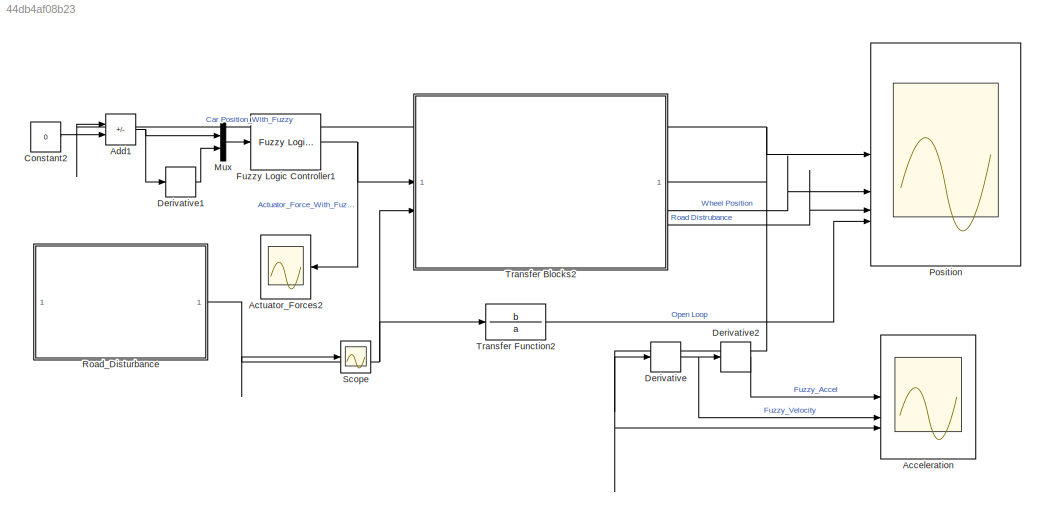
MODEL slx_44db4af08b23
KIND model
CONFIG AbsTol = auto
CONFIG EnableMultiTasking = off
CONFIG FixedStep = auto
CONFIG MaxStep = 1e-3
CONFIG MinStep = auto
CONFIG RelTol = 1e-3
CONFIG SampleTimeConstraint = Unconstrained
CONFIG SolverName = VariableStepAuto
CONFIG StartTime = 0.0
CONFIG StopTime = 10
BLOCK [Scope] Acceleration
  Floating = off
  NumInputPorts = 3
  ScopeSpecificationString = Simulink.scopes.TimeScopeBlockCfg('CurrentConfiguration', extmgr.ConfigurationSet(extmgr.Configuration('Core','General UI',true),extmgr.Configuration('Core','Source UI',true),extmgr.Configuration('Sources','WiredSimulink',true,'DataLoggingVariableName','ScopeData1'),extmgr.Configuration('Visuals','Time Domain',true,'SerializedDisplays',{struct('MinYLimReal','-111729.00564','MaxYLimReal','994265.93...<+1735ch>
BLOCK [Scope] Actuator_Forces2
  Floating = off
  NameLocation = top
  NumInputPorts = 1
  ScopeSpecificationString = Simulink.scopes.TimeScopeBlockCfg('CurrentConfiguration', extmgr.ConfigurationSet(extmgr.Configuration('Core','General UI',true),extmgr.Configuration('Core','Source UI',true),extmgr.Configuration('Sources','WiredSimulink',true,'DataLoggingVariableName','ScopeData1'),extmgr.Configuration('Visuals','Time Domain',true,'SerializedDisplays',{struct('MinYLimReal','-2270.53394','MaxYLimReal','735.02853',...<+1497ch>
BLOCK [Sum] Add1
  IconShape = rectangular
  Inputs = -+
BLOCK [Constant] Constant2
  Value = 0
BLOCK [Derivative] Derivative
BLOCK [Derivative] Derivative1
BLOCK [Derivative] Derivative2
BLOCK [Reference] Fuzzy Logic Controller1  REF=fuzblock/Fuzzy Logic   (lib defined in mdl_858b3b3e7478)
Controller
  SourceBlock = fuzblock/Fuzzy Logic \nController
  SourceType = Fuzzy Inference System
BLOCK [Mux] Mux
  DisplayOption = bar
  Inputs = 2
BLOCK [Scope] Position
  Floating = off
  NumInputPorts = 4
  ScopeSpecificationString = Simulink.scopes.TimeScopeBlockCfg('CurrentConfiguration', extmgr.ConfigurationSet(extmgr.Configuration('Core','General UI',true),extmgr.Configuration('Core','Source UI',true),extmgr.Configuration('Sources','WiredSimulink',true,'DataLoggingVariableName','ScopeData2'),extmgr.Configuration('Visuals','Time Domain',true,'SerializedDisplays',{struct('MinYLimReal','-0.09339','MaxYLimReal','0.17281','YLab...<+2014ch>
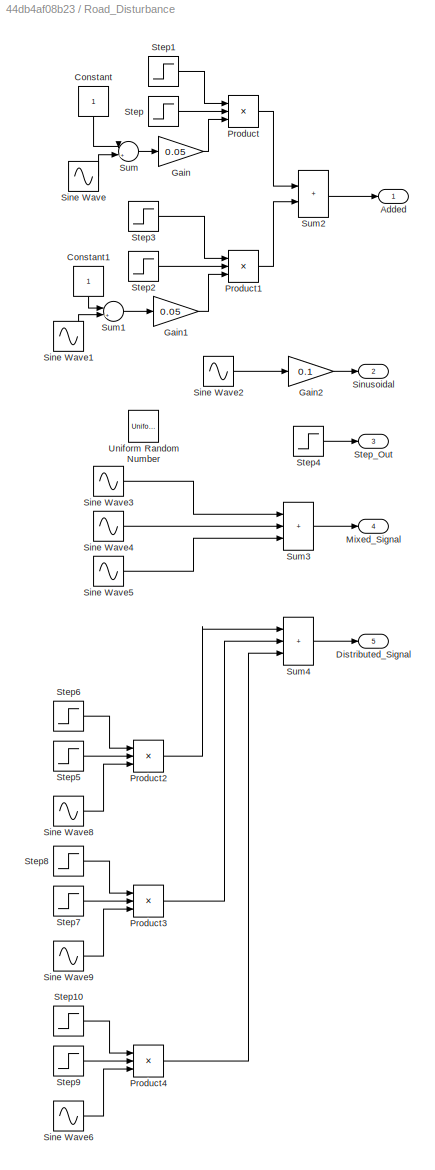
BLOCK [SubSystem] Road_Disturbance
BLOCK [Outport] Road_Disturbance/Added
BLOCK [Constant] Road_Disturbance/Constant
  NameLocation = left
BLOCK [Constant] Road_Disturbance/Constant1
  NameLocation = left
BLOCK [Outport] Road_Disturbance/Distributed_Signal
  Port = 5
BLOCK [Gain] Road_Disturbance/Gain
  Gain = 0.05
BLOCK [Gain] Road_Disturbance/Gain1
  Gain = 0.05
BLOCK [Gain] Road_Disturbance/Gain2
  Gain = 0.1
BLOCK [Outport] Road_Disturbance/Mixed_Signal
  Port = 4
BLOCK [Product] Road_Disturbance/Product
  Inputs = 3
BLOCK [Product] Road_Disturbance/Product1
  Inputs = 3
BLOCK [Product] Road_Disturbance/Product2
  Inputs = 3
BLOCK [Product] Road_Disturbance/Product3
  Inputs = 3
BLOCK [Product] Road_Disturbance/Product4
  Inputs = 3
BLOCK [Sin] Road_Disturbance/Sine Wave
  Frequency = 2*pi
  Phase = pi*3/2
  SampleTime = 0
BLOCK [Sin] Road_Disturbance/Sine Wave1
  Frequency = 2*pi
  Phase = pi*3/2
  SampleTime = 0
BLOCK [Sin] Road_Disturbance/Sine Wave2
  Frequency = 2*pi
  Phase = pi
  SampleTime = 0
BLOCK [Sin] Road_Disturbance/Sine Wave3
  Amplitude = 0.01
  Frequency = 15*pi
  SampleTime = 0
BLOCK [Sin] Road_Disturbance/Sine Wave4
  Amplitude = 0.02
  Frequency = 10*pi
  Phase = pi/2
  SampleTime = 0
BLOCK [Sin] Road_Disturbance/Sine Wave5
  Amplitude = 0.03
  Frequency = pi
  SampleTime = 0
BLOCK [Sin] Road_Disturbance/Sine Wave6
  Amplitude = 0.08
  Frequency = pi
  Phase = pi*3/2
  SampleTime = 0
BLOCK [Sin] Road_Disturbance/Sine Wave8
  Amplitude = 0.1
  Frequency = pi
  Phase = pi*3/2
  SampleTime = 0
BLOCK [Sin] Road_Disturbance/Sine Wave9
  Amplitude = 0.05
  Frequency = pi
  Phase = pi*3/2
  SampleTime = 0
BLOCK [Outport] Road_Disturbance/Sinusoidal
  Port = 2
BLOCK [Step] Road_Disturbance/Step
  After = 0
  Before = 1
  SampleTime = 0
  Time = 1.5
BLOCK [Step] Road_Disturbance/Step1
  SampleTime = 0
  Time = 0.5
BLOCK [Step] Road_Disturbance/Step10
  SampleTime = 0
  Time = 8.5
BLOCK [Step] Road_Disturbance/Step2
  After = 0
  Before = 1
  SampleTime = 0
  Time = 3.5
BLOCK [Step] Road_Disturbance/Step3
  SampleTime = 0
  Time = 2.5
BLOCK [Step] Road_Disturbance/Step4
  After = 0.015
  SampleTime = 0
  Time = 2
BLOCK [Step] Road_Disturbance/Step5
  After = 0
  Before = 1
  SampleTime = 0
  Time = 1.5
BLOCK [Step] Road_Disturbance/Step6
  SampleTime = 0
  Time = 0.5
BLOCK [Step] Road_Disturbance/Step7
  After = 0
  Before = 1
  SampleTime = 0
  Time = 5.5
BLOCK [Step] Road_Disturbance/Step8
  SampleTime = 0
  Time = 4.5
BLOCK [Step] Road_Disturbance/Step9
  After = 0
  Before = 1
  SampleTime = 0
  Time = 9.5
BLOCK [Outport] Road_Disturbance/Step_Out
  Port = 3
BLOCK [Sum] Road_Disturbance/Sum
  Inputs = |+-
BLOCK [Sum] Road_Disturbance/Sum1
  Inputs = |+-
BLOCK [Sum] Road_Disturbance/Sum2
  IconShape = rectangular
BLOCK [Sum] Road_Disturbance/Sum3
  IconShape = rectangular
  Inputs = +++
BLOCK [Sum] Road_Disturbance/Sum4
  IconShape = rectangular
  Inputs = +++
BLOCK [UniformRandomNumber] Road_Disturbance/Uniform Random Number
  Maximum = 0.05
  Minimum = -0.05
  SampleTime = 0.1
BLOCK [Scope] Scope
  Floating = off
  NumInputPorts = 1
  ScopeSpecificationString = Simulink.scopes.TimeScopeBlockCfg('CurrentConfiguration', extmgr.ConfigurationSet(extmgr.Configuration('Core','General UI',true),extmgr.Configuration('Core','Source UI',true),extmgr.Configuration('Sources','WiredSimulink',true,'DataLoggingVariableName','ScopeData1'),extmgr.Configuration('Visuals','Time Domain',true,'SerializedDisplays',{struct('MinYLimReal','-0.0125','MaxYLimReal','0.1125','YLabel...<+1423ch>
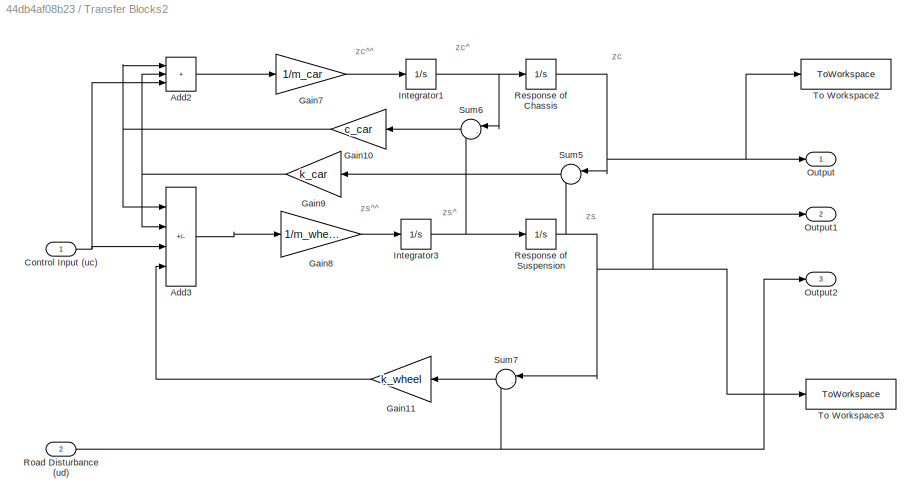
BLOCK [SubSystem] Transfer Blocks2
BLOCK [Sum] Transfer Blocks2/Add2
  IconShape = rectangular
  Inputs = +++
BLOCK [Sum] Transfer Blocks2/Add3
  IconShape = rectangular
  Inputs = ---+
BLOCK [Inport] Transfer Blocks2/Control Input (uc)
BLOCK [Gain] Transfer Blocks2/Gain10
  Gain = c_car
  NameLocation = top
BLOCK [Gain] Transfer Blocks2/Gain11
  Gain = k_wheel
  NameLocation = top
BLOCK [Gain] Transfer Blocks2/Gain7
  Gain = 1/m_car
BLOCK [Gain] Transfer Blocks2/Gain8
  Gain = 1/m_wheel
BLOCK [Gain] Transfer Blocks2/Gain9
  Gain = k_car
  NameLocation = top
BLOCK [Integrator] Transfer Blocks2/Integrator1
BLOCK [Integrator] Transfer Blocks2/Integrator3
BLOCK [Outport] Transfer Blocks2/Output
BLOCK [Outport] Transfer Blocks2/Output1
  Port = 2
BLOCK [Outport] Transfer Blocks2/Output2
  Port = 3
BLOCK [Integrator] Transfer Blocks2/Response of Chassis
BLOCK [Integrator] Transfer Blocks2/Response of Suspension
BLOCK [Inport] Transfer Blocks2/Road Disturbance (ud)
  Port = 2
BLOCK [Sum] Transfer Blocks2/Sum5
  Inputs = |-+
  NameLocation = top
BLOCK [Sum] Transfer Blocks2/Sum6
  Inputs = |-+
  NameLocation = top
BLOCK [Sum] Transfer Blocks2/Sum7
  Inputs = |-+
  NameLocation = top
BLOCK [ToWorkspace] Transfer Blocks2/To Workspace2
  FixptAsFi = on
  MaxDataPoints = inf
  SampleTime = -1
  SaveFormat = Timeseries
  VariableName = Z_Car4
BLOCK [ToWorkspace] Transfer Blocks2/To Workspace3
  FixptAsFi = on
  MaxDataPoints = inf
  SampleTime = -1
  SaveFormat = Timeseries
  VariableName = Z_Wheel4
BLOCK [TransferFcn] Transfer Function2
  Denominator = a
  Numerator = b
ANNOTATION Transfer Blocks2: zc
ANNOTATION Transfer Blocks2: zc^
ANNOTATION Transfer Blocks2: zc^^
ANNOTATION Transfer Blocks2: zs
ANNOTATION Transfer Blocks2: zs^
ANNOTATION Transfer Blocks2: zs^^
NET Add1:1 -> Derivative1:1, Mux:1
LINE Constant2:1 -> Add1:2
LINE Derivative1:1 -> Mux:2
LINE Derivative2:1 -> Acceleration:1
NET Derivative:1 -> Acceleration:2, Derivative2:1
NET Fuzzy Logic Controller1:1 -> Actuator_Forces2:1, Transfer Blocks2:1
LINE Mux:1 -> Fuzzy Logic Controller1:1
LINE Road_Disturbance/Constant1:1 -> Road_Disturbance/Sum1:1
LINE Road_Disturbance/Constant:1 -> Road_Disturbance/Sum:1
LINE Road_Disturbance/Gain1:1 -> Road_Disturbance/Product1:3
LINE Road_Disturbance/Gain2:1 -> Road_Disturbance/Sinusoidal:1
LINE Road_Disturbance/Gain:1 -> Road_Disturbance/Product:3
LINE Road_Disturbance/Product1:1 -> Road_Disturbance/Sum2:2
LINE Road_Disturbance/Product2:1 -> Road_Disturbance/Sum4:1
LINE Road_Disturbance/Product3:1 -> Road_Disturbance/Sum4:2
LINE Road_Disturbance/Product4:1 -> Road_Disturbance/Sum4:3
LINE Road_Disturbance/Product:1 -> Road_Disturbance/Sum2:1
LINE Road_Disturbance/Sine Wave1:1 -> Road_Disturbance/Sum1:2
LINE Road_Disturbance/Sine Wave2:1 -> Road_Disturbance/Gain2:1
LINE Road_Disturbance/Sine Wave3:1 -> Road_Disturbance/Sum3:1
LINE Road_Disturbance/Sine Wave4:1 -> Road_Disturbance/Sum3:2
LINE Road_Disturbance/Sine Wave5:1 -> Road_Disturbance/Sum3:3
LINE Road_Disturbance/Sine Wave6:1 -> Road_Disturbance/Product4:3
LINE Road_Disturbance/Sine Wave8:1 -> Road_Disturbance/Product2:3
LINE Road_Disturbance/Sine Wave9:1 -> Road_Disturbance/Product3:3
LINE Road_Disturbance/Sine Wave:1 -> Road_Disturbance/Sum:2
LINE Road_Disturbance/Step10:1 -> Road_Disturbance/Product4:1
LINE Road_Disturbance/Step1:1 -> Road_Disturbance/Product:1
LINE Road_Disturbance/Step2:1 -> Road_Disturbance/Product1:2
LINE Road_Disturbance/Step3:1 -> Road_Disturbance/Product1:1
LINE Road_Disturbance/Step4:1 -> Road_Disturbance/Step_Out:1
LINE Road_Disturbance/Step5:1 -> Road_Disturbance/Product2:2
LINE Road_Disturbance/Step6:1 -> Road_Disturbance/Product2:1
LINE Road_Disturbance/Step7:1 -> Road_Disturbance/Product3:2
LINE Road_Disturbance/Step8:1 -> Road_Disturbance/Product3:1
LINE Road_Disturbance/Step9:1 -> Road_Disturbance/Product4:2
LINE Road_Disturbance/Step:1 -> Road_Disturbance/Product:2
LINE Road_Disturbance/Sum1:1 -> Road_Disturbance/Gain1:1
LINE Road_Disturbance/Sum2:1 -> Road_Disturbance/Added:1
LINE Road_Disturbance/Sum3:1 -> Road_Disturbance/Mixed_Signal:1
LINE Road_Disturbance/Sum4:1 -> Road_Disturbance/Distributed_Signal:1
LINE Road_Disturbance/Sum:1 -> Road_Disturbance/Gain:1
NET Road_Disturbance:1 -> Scope:1, Transfer Blocks2:2, Transfer Function2:1
LINE Transfer Blocks2/Add2:1 -> Transfer Blocks2/Gain7:1
LINE Transfer Blocks2/Add3:1 -> Transfer Blocks2/Gain8:1
NET Transfer Blocks2/Control Input (uc):1 -> Transfer Blocks2/Add2:3, Transfer Blocks2/Add3:3
NET Transfer Blocks2/Gain10:1 -> Transfer Blocks2/Add2:1, Transfer Blocks2/Add3:1
LINE Transfer Blocks2/Gain11:1 -> Transfer Blocks2/Add3:4
LINE Transfer Blocks2/Gain7:1 -> Transfer Blocks2/Integrator1:1
LINE Transfer Blocks2/Gain8:1 -> Transfer Blocks2/Integrator3:1
NET Transfer Blocks2/Gain9:1 -> Transfer Blocks2/Add2:2, Transfer Blocks2/Add3:2
NET Transfer Blocks2/Integrator1:1 -> Transfer Blocks2/Response of Chassis:1, Transfer Blocks2/Sum6:1
NET Transfer Blocks2/Integrator3:1 -> Transfer Blocks2/Response of Suspension:1, Transfer Blocks2/Sum6:2
NET Transfer Blocks2/Response of Chassis:1 -> Transfer Blocks2/Output:1, Transfer Blocks2/Sum5:1, Transfer Blocks2/To Workspace2:1
NET Transfer Blocks2/Response of Suspension:1 -> Transfer Blocks2/Output1:1, Transfer Blocks2/Sum5:2, Transfer Blocks2/Sum7:1, Transfer Blocks2/To Workspace3:1
NET Transfer Blocks2/Road Disturbance (ud):1 -> Transfer Blocks2/Output2:1, Transfer Blocks2/Sum7:2
LINE Transfer Blocks2/Sum5:1 -> Transfer Blocks2/Gain9:1
LINE Transfer Blocks2/Sum6:1 -> Transfer Blocks2/Gain10:1
LINE Transfer Blocks2/Sum7:1 -> Transfer Blocks2/Gain11:1
NET Transfer Blocks2:1 -> Acceleration:3, Add1:1, Derivative:1, Position:1
LINE Transfer Blocks2:2 -> Position:2
LINE Transfer Blocks2:3 -> Position:3
LINE Transfer Function2:1 -> Position:4
note: NET lines group one-source signal fan-out (src -> all destinations, sorted); 1:1 wires keep LINE
